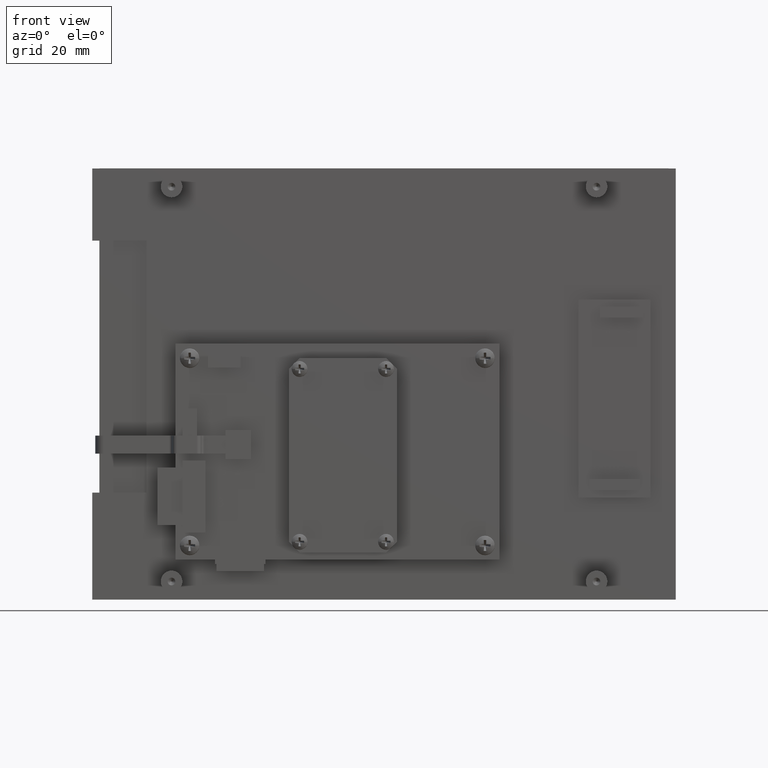
[diagram: clean part render]
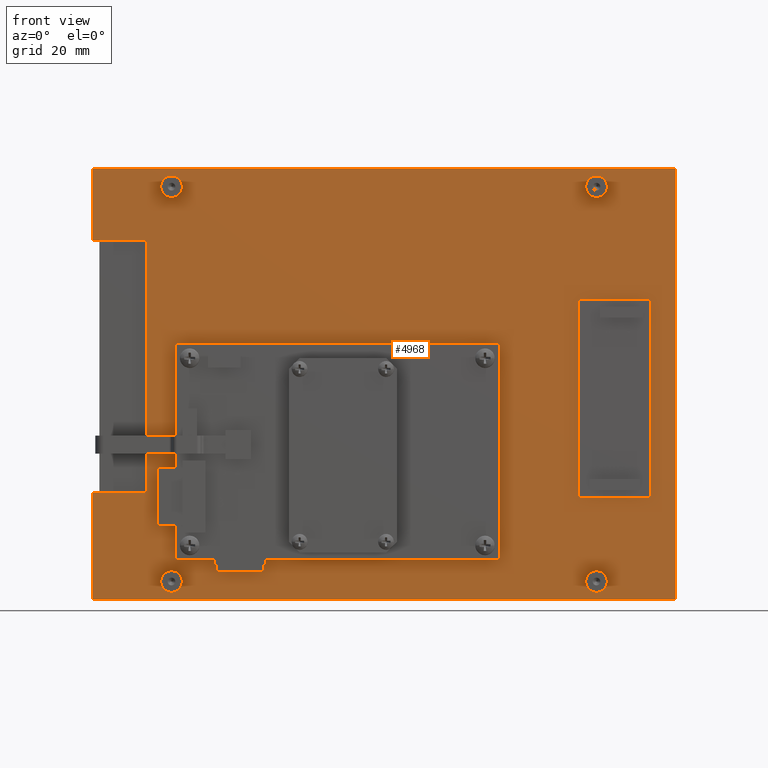
[diagram: same view with one face highlighted and labeled with its STEP entity id]
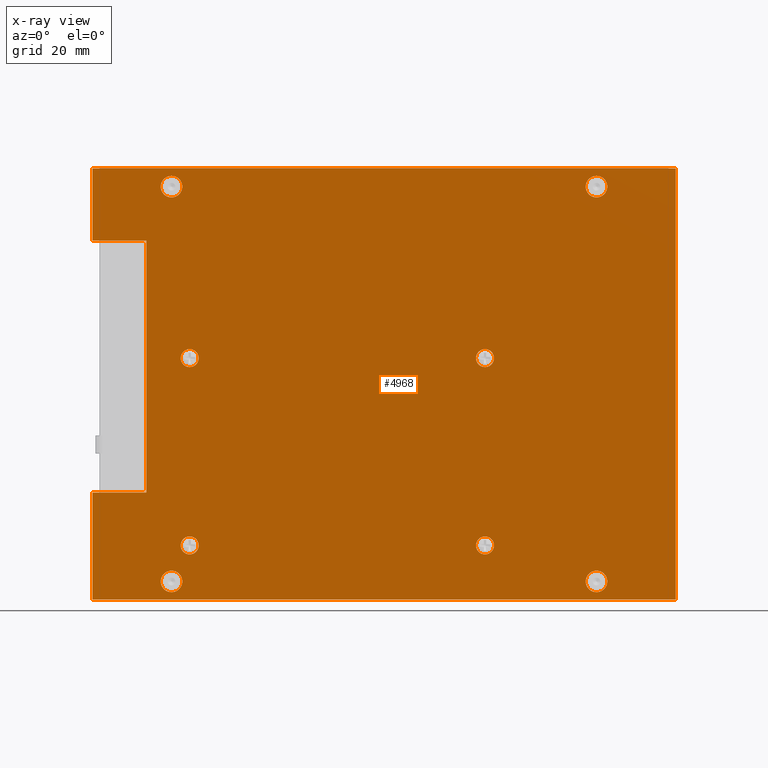
[diagram: x-ray of the same camera — body ghosted, the highlighted face saturated]
A machine part, front view. The second image highlights one B-rep face of the part: STEP entity #4968.
The next image is the same camera in x-ray: the body ghosted, the highlighted face saturated — about 0% of this face is hidden behind the body in this view.
In plain terms, the highlighted planar face has unit normal (0, 1, 0).
Its self-contained STEP definition (entity closure, byte-faithful):
#1985 = CARTESIAN_POINT ( 'NONE',  ( 4.049999999999999800, 0.0000000000000000000, -2.992500000000000600 ) ) ;
#1992 = CARTESIAN_POINT ( 'NONE',  ( 2.949999999999999700, 0.0000000000000000000, 2.890500000000000300 ) ) ;
#1996 = CARTESIAN_POINT ( 'NONE',  ( -2.698000000000000000, 0.0000000000000000000, -2.115500000000000400 ) ) ;
#2017 = CARTESIAN_POINT ( 'NONE',  ( -2.697999999999999100, 0.0000000000000000000, 0.2344999999999999000 ) ) ;
#2018 = CARTESIAN_POINT ( 'NONE',  ( -2.950000000000003300, 0.0000000000000000000, -2.890500000000000300 ) ) ;
#2021 = CARTESIAN_POINT ( 'NONE',  ( -2.950000000000003300, 0.0000000000000000000, -2.590500000000000500 ) ) ;
#2024 = CARTESIAN_POINT ( 'NONE',  ( 2.949999999999996600, 0.0000000000000000000, -2.890500000000000300 ) ) ;
#2029 = CARTESIAN_POINT ( 'NONE',  ( 1.402000000000000600, 0.0000000000000000000, 0.2344999999999999000 ) ) ;
#2030 = CARTESIAN_POINT ( 'NONE',  ( 2.949999999999996600, 0.0000000000000000000, -2.590500000000000500 ) ) ;
#2031 = CARTESIAN_POINT ( 'NONE',  ( 4.049999999999999800, 0.0000000000000000000, 2.992500000000000600 ) ) ;
#2033 = CARTESIAN_POINT ( 'NONE',  ( 2.949999999999999700, 0.0000000000000000000, 2.590500000000000500 ) ) ;
#2035 = CARTESIAN_POINT ( 'NONE',  ( -2.697999999999999100, 0.0000000000000000000, 0.4844999999999997100 ) ) ;
#2039 = CARTESIAN_POINT ( 'NONE',  ( -2.698000000000000000, 0.0000000000000000000, -2.365500000000000400 ) ) ;
#2043 = CARTESIAN_POINT ( 'NONE',  ( 1.402000000000000600, 0.0000000000000000000, 0.4844999999999997100 ) ) ;
#2050 = CARTESIAN_POINT ( 'NONE',  ( 1.401999999999999500, 0.0000000000000000000, -2.365500000000000400 ) ) ;
#2051 = CARTESIAN_POINT ( 'NONE',  ( 1.401999999999999500, 0.0000000000000000000, -2.115500000000000400 ) ) ;
#3328 = CIRCLE ( 'NONE', #4472, 0.1249999999999999000 ) ;
#3731 = CARTESIAN_POINT ( 'NONE',  ( -4.049999999999999800, 0.0000000000000000000, 1.992500000000000200 ) ) ;
#3732 = CARTESIAN_POINT ( 'NONE',  ( -3.299999999999999800, 0.0000000000000000000, -1.507499999999999600 ) ) ;
#3737 = CARTESIAN_POINT ( 'NONE',  ( -2.949999999999999700, 0.0000000000000000000, 2.590500000000000500 ) ) ;
#3741 = CARTESIAN_POINT ( 'NONE',  ( -4.049999999999999800, 0.0000000000000000000, -2.992500000000000600 ) ) ;
#3742 = CARTESIAN_POINT ( 'NONE',  ( -3.299999999999999800, 0.0000000000000000000, 1.992500000000000400 ) ) ;
#3743 = CARTESIAN_POINT ( 'NONE',  ( -4.049999999999999800, 0.0000000000000000000, 2.992500000000000600 ) ) ;
#3744 = CARTESIAN_POINT ( 'NONE',  ( -2.949999999999999700, 0.0000000000000000000, 2.890500000000000300 ) ) ;
#3745 = CARTESIAN_POINT ( 'NONE',  ( -4.049999999999999800, 0.0000000000000000000, -1.507499999999999600 ) ) ;
#4472 = AXIS2_PLACEMENT_3D ( 'NONE', #18229, #18230, #18231 ) ;
#4793 = EDGE_CURVE ( 'NONE', #7334, #7293, #7807, .T. ) ;
#4803 = EDGE_CURVE ( 'NONE', #12975, #12982, #7823, .T. ) ;
#4805 = EDGE_CURVE ( 'NONE', #7297, #7340, #7824, .T. ) ;
#4806 = EDGE_CURVE ( 'NONE', #12982, #12975, #7827, .T. ) ;
#4807 = EDGE_CURVE ( 'NONE', #12980, #12970, #7830, .T. ) ;
#4808 = EDGE_CURVE ( 'NONE', #12970, #12983, #7829, .T. ) ;
#4809 = EDGE_CURVE ( 'NONE', #12979, #12983, #7833, .T. ) ;
#4810 = EDGE_CURVE ( 'NONE', #7286, #12979, #7831, .T. ) ;
#4811 = EDGE_CURVE ( 'NONE', #7332, #7286, #7835, .T. ) ;
#4812 = EDGE_CURVE ( 'NONE', #12981, #7332, #7837, .T. ) ;
#4813 = EDGE_CURVE ( 'NONE', #12969, #12981, #7839, .T. ) ;
#4814 = EDGE_CURVE ( 'NONE', #12969, #12980, #7841, .T. ) ;
#4815 = EDGE_CURVE ( 'NONE', #7293, #7334, #7845, .T. ) ;
#4816 = EDGE_CURVE ( 'NONE', #7322, #7319, #7847, .T. ) ;
#4817 = EDGE_CURVE ( 'NONE', #7331, #7325, #7848, .T. ) ;
#4818 = EDGE_CURVE ( 'NONE', #7336, #7318, #7843, .T. ) ;
#4819 = EDGE_CURVE ( 'NONE', #7352, #7351, #7849, .T. ) ;
#4820 = EDGE_CURVE ( 'NONE', #7344, #7330, #7850, .T. ) ;
#4968 = ADVANCED_FACE ( 'NONE', ( #8050, #8824, #8058, #8057, #8056, #8825, #8826, #8827, #8828 ), #15301, .F. ) ;
#5799 = EDGE_CURVE ( 'NONE', #7351, #7352, #9389, .T. ) ;
#5803 = EDGE_CURVE ( 'NONE', #7318, #7336, #9392, .T. ) ;
#5807 = EDGE_CURVE ( 'NONE', #7340, #7297, #9398, .T. ) ;
#5811 = EDGE_CURVE ( 'NONE', #7325, #7331, #9404, .T. ) ;
#5821 = EDGE_CURVE ( 'NONE', #7319, #7322, #9420, .T. ) ;
#6597 = ORIENTED_EDGE ( 'NONE', *, *, #4805, .F. ) ;
#6598 = ORIENTED_EDGE ( 'NONE', *, *, #5807, .F. ) ;
#6599 = ORIENTED_EDGE ( 'NONE', *, *, #4806, .F. ) ;
#6600 = ORIENTED_EDGE ( 'NONE', *, *, #4803, .F. ) ;
#6601 = ORIENTED_EDGE ( 'NONE', *, *, #4807, .T. ) ;
#6602 = ORIENTED_EDGE ( 'NONE', *, *, #4808, .T. ) ;
#6603 = ORIENTED_EDGE ( 'NONE', *, *, #4809, .F. ) ;
#6604 = ORIENTED_EDGE ( 'NONE', *, *, #4810, .F. ) ;
#6605 = ORIENTED_EDGE ( 'NONE', *, *, #4811, .F. ) ;
#6606 = ORIENTED_EDGE ( 'NONE', *, *, #4812, .F. ) ;
#6607 = ORIENTED_EDGE ( 'NONE', *, *, #4813, .F. ) ;
#6608 = ORIENTED_EDGE ( 'NONE', *, *, #4814, .T. ) ;
#6609 = ORIENTED_EDGE ( 'NONE', *, *, #4815, .F. ) ;
#6610 = ORIENTED_EDGE ( 'NONE', *, *, #4793, .F. ) ;
#6611 = ORIENTED_EDGE ( 'NONE', *, *, #4816, .F. ) ;
#6612 = ORIENTED_EDGE ( 'NONE', *, *, #5821, .F. ) ;
#6613 = ORIENTED_EDGE ( 'NONE', *, *, #4817, .F. ) ;
#6614 = ORIENTED_EDGE ( 'NONE', *, *, #5811, .F. ) ;
#6615 = ORIENTED_EDGE ( 'NONE', *, *, #4818, .F. ) ;
#6616 = ORIENTED_EDGE ( 'NONE', *, *, #5803, .F. ) ;
#6617 = ORIENTED_EDGE ( 'NONE', *, *, #4819, .F. ) ;
#6618 = ORIENTED_EDGE ( 'NONE', *, *, #5799, .F. ) ;
#6619 = ORIENTED_EDGE ( 'NONE', *, *, #4820, .F. ) ;
#6620 = ORIENTED_EDGE ( 'NONE', *, *, #14750, .F. ) ;
#7286 = VERTEX_POINT ( 'NONE', #1985 ) ;
#7293 = VERTEX_POINT ( 'NONE', #1992 ) ;
#7297 = VERTEX_POINT ( 'NONE', #1996 ) ;
#7318 = VERTEX_POINT ( 'NONE', #2017 ) ;
#7319 = VERTEX_POINT ( 'NONE', #2018 ) ;
#7322 = VERTEX_POINT ( 'NONE', #2021 ) ;
#7325 = VERTEX_POINT ( 'NONE', #2024 ) ;
#7330 = VERTEX_POINT ( 'NONE', #2029 ) ;
#7331 = VERTEX_POINT ( 'NONE', #2030 ) ;
#7332 = VERTEX_POINT ( 'NONE', #2031 ) ;
#7334 = VERTEX_POINT ( 'NONE', #2033 ) ;
#7336 = VERTEX_POINT ( 'NONE', #2035 ) ;
#7340 = VERTEX_POINT ( 'NONE', #2039 ) ;
#7344 = VERTEX_POINT ( 'NONE', #2043 ) ;
#7351 = VERTEX_POINT ( 'NONE', #2050 ) ;
#7352 = VERTEX_POINT ( 'NONE', #2051 ) ;
#7807 = CIRCLE ( 'NONE', #8139, 0.1499999999999997700 ) ;
#7823 = CIRCLE ( 'NONE', #8143, 0.1499999999999997700 ) ;
#7824 = CIRCLE ( 'NONE', #8144, 0.1249999999999999000 ) ;
#7827 = CIRCLE ( 'NONE', #8145, 0.1499999999999997700 ) ;
#7829 = LINE ( 'NONE', #12245, #7834 ) ;
#7830 = LINE ( 'NONE', #12239, #7832 ) ;
#7831 = LINE ( 'NONE', #12244, #7838 ) ;
#7832 = VECTOR ( 'NONE', #12240, 39.37007874015748100 ) ;
#7833 = LINE ( 'NONE', #12251, #7836 ) ;
#7834 = VECTOR ( 'NONE', #12250, 39.37007874015748100 ) ;
#7835 = LINE ( 'NONE', #12249, #7840 ) ;
#7836 = VECTOR ( 'NONE', #12253, 39.37007874015748100 ) ;
#7837 = LINE ( 'NONE', #12252, #7842 ) ;
#7838 = VECTOR ( 'NONE', #12254, 39.37007874015748100 ) ;
#7839 = LINE ( 'NONE', #12255, #7844 ) ;
#7840 = VECTOR ( 'NONE', #12256, 39.37007874015748100 ) ;
#7841 = LINE ( 'NONE', #12257, #7846 ) ;
#7842 = VECTOR ( 'NONE', #12258, 39.37007874015748100 ) ;
#7843 = CIRCLE ( 'NONE', #8149, 0.1249999999999999000 ) ;
#7844 = VECTOR ( 'NONE', #12259, 39.37007874015748100 ) ;
#7845 = CIRCLE ( 'NONE', #8146, 0.1499999999999997700 ) ;
#7846 = VECTOR ( 'NONE', #12260, 39.37007874015748100 ) ;
#7847 = CIRCLE ( 'NONE', #8147, 0.1499999999999997700 ) ;
#7848 = CIRCLE ( 'NONE', #8148, 0.1499999999999997700 ) ;
#7849 = CIRCLE ( 'NONE', #8150, 0.1249999999999999000 ) ;
#7850 = CIRCLE ( 'NONE', #8151, 0.1249999999999999000 ) ;
#8050 = FACE_BOUND ( 'NONE', #14420, .T. ) ;
#8056 = FACE_BOUND ( 'NONE', #14422, .T. ) ;
#8057 = FACE_BOUND ( 'NONE', #14410, .T. ) ;
#8058 = FACE_OUTER_BOUND ( 'NONE', #14421, .T. ) ;
#8139 = AXIS2_PLACEMENT_3D ( 'NONE', #12212, #12213, #12214 ) ;
#8143 = AXIS2_PLACEMENT_3D ( 'NONE', #12236, #12237, #12238 ) ;
#8144 = AXIS2_PLACEMENT_3D ( 'NONE', #12241, #12242, #12243 ) ;
#8145 = AXIS2_PLACEMENT_3D ( 'NONE', #12246, #12247, #12248 ) ;
#8146 = AXIS2_PLACEMENT_3D ( 'NONE', #12262, #12263, #12264 ) ;
#8147 = AXIS2_PLACEMENT_3D ( 'NONE', #12266, #12267, #12268 ) ;
#8148 = AXIS2_PLACEMENT_3D ( 'NONE', #12269, #12270, #12271 ) ;
#8149 = AXIS2_PLACEMENT_3D ( 'NONE', #12272, #12273, #12274 ) ;
#8150 = AXIS2_PLACEMENT_3D ( 'NONE', #12275, #12276, #12277 ) ;
#8151 = AXIS2_PLACEMENT_3D ( 'NONE', #12280, #12281, #12282 ) ;
#8248 = AXIS2_PLACEMENT_3D ( 'NONE', #15299, #15296, #15302 ) ;
#8824 = FACE_BOUND ( 'NONE', #14411, .T. ) ;
#8825 = FACE_BOUND ( 'NONE', #14413, .T. ) ;
#8826 = FACE_BOUND ( 'NONE', #14424, .T. ) ;
#8827 = FACE_BOUND ( 'NONE', #14414, .T. ) ;
#8828 = FACE_BOUND ( 'NONE', #14423, .T. ) ;
#9389 = CIRCLE ( 'NONE', #11325, 0.1249999999999999000 ) ;
#9392 = CIRCLE ( 'NONE', #11327, 0.1249999999999999000 ) ;
#9398 = CIRCLE ( 'NONE', #11329, 0.1249999999999999000 ) ;
#9404 = CIRCLE ( 'NONE', #11331, 0.1499999999999997700 ) ;
#9420 = CIRCLE ( 'NONE', #11335, 0.1499999999999997700 ) ;
#11325 = AXIS2_PLACEMENT_3D ( 'NONE', #20357, #20358, #20359 ) ;
#11327 = AXIS2_PLACEMENT_3D ( 'NONE', #20367, #20368, #20369 ) ;
#11329 = AXIS2_PLACEMENT_3D ( 'NONE', #20377, #20378, #20379 ) ;
#11331 = AXIS2_PLACEMENT_3D ( 'NONE', #20386, #20387, #20388 ) ;
#11335 = AXIS2_PLACEMENT_3D ( 'NONE', #20410, #20411, #20412 ) ;
#12212 = CARTESIAN_POINT ( 'NONE',  ( 2.949999999999999700, 0.0000000000000000000, 2.740500000000000400 ) ) ;
#12213 = DIRECTION ( 'NONE',  ( -0.0000000000000000000, -1.000000000000000000, -0.0000000000000000000 ) ) ;
#12214 = DIRECTION ( 'NONE',  ( 0.0000000000000000000, 0.0000000000000000000, 1.000000000000000000 ) ) ;
#12236 = CARTESIAN_POINT ( 'NONE',  ( -2.949999999999999700, 0.0000000000000000000, 2.740500000000000400 ) ) ;
#12237 = DIRECTION ( 'NONE',  ( -0.0000000000000000000, -1.000000000000000000, -0.0000000000000000000 ) ) ;
#12238 = DIRECTION ( 'NONE',  ( 0.0000000000000000000, 0.0000000000000000000, 1.000000000000000000 ) ) ;
#12239 = CARTESIAN_POINT ( 'NONE',  ( -3.299999999999999800, 0.0000000000000000000, 1.992500000000000400 ) ) ;
#12240 = DIRECTION ( 'NONE',  ( 0.0000000000000000000, 0.0000000000000000000, -1.000000000000000000 ) ) ;
#12241 = CARTESIAN_POINT ( 'NONE',  ( -2.698000000000000000, 0.0000000000000000000, -2.240500000000000400 ) ) ;
#12242 = DIRECTION ( 'NONE',  ( -0.0000000000000000000, -1.000000000000000000, -0.0000000000000000000 ) ) ;
#12243 = DIRECTION ( 'NONE',  ( 0.0000000000000000000, 0.0000000000000000000, 1.000000000000000000 ) ) ;
#12244 = CARTESIAN_POINT ( 'NONE',  ( -4.049999999999999800, 0.0000000000000000000, -2.992500000000000600 ) ) ;
#12245 = CARTESIAN_POINT ( 'NONE',  ( -4.049999999999999800, 0.0000000000000000000, -1.507499999999999600 ) ) ;
#12246 = CARTESIAN_POINT ( 'NONE',  ( -2.949999999999999700, 0.0000000000000000000, 2.740500000000000400 ) ) ;
#12247 = DIRECTION ( 'NONE',  ( -0.0000000000000000000, -1.000000000000000000, -0.0000000000000000000 ) ) ;
#12248 = DIRECTION ( 'NONE',  ( 0.0000000000000000000, 0.0000000000000000000, 1.000000000000000000 ) ) ;
#12249 = CARTESIAN_POINT ( 'NONE',  ( 4.049999999999999800, 0.0000000000000000000, -2.992500000000000600 ) ) ;
#12250 = DIRECTION ( 'NONE',  ( -1.000000000000000000, -0.0000000000000000000, -0.0000000000000000000 ) ) ;
#12251 = CARTESIAN_POINT ( 'NONE',  ( -4.049999999999999800, 0.0000000000000000000, -2.992500000000000600 ) ) ;
#12252 = CARTESIAN_POINT ( 'NONE',  ( -4.049999999999999800, 0.0000000000000000000, 2.992500000000000600 ) ) ;
#12253 = DIRECTION ( 'NONE',  ( 9.128982434968297100E-017, 0.0000000000000000000, 1.000000000000000000 ) ) ;
#12254 = DIRECTION ( 'NONE',  ( -1.000000000000000000, -0.0000000000000000000, -0.0000000000000000000 ) ) ;
#12255 = CARTESIAN_POINT ( 'NONE',  ( -4.049999999999999800, 0.0000000000000000000, -2.992500000000000600 ) ) ;
#12256 = DIRECTION ( 'NONE',  ( -0.0000000000000000000, -0.0000000000000000000, -1.000000000000000000 ) ) ;
#12257 = CARTESIAN_POINT ( 'NONE',  ( -4.049999999999999800, 0.0000000000000000000, 1.992500000000000200 ) ) ;
#12258 = DIRECTION ( 'NONE',  ( 1.000000000000000000, 0.0000000000000000000, 0.0000000000000000000 ) ) ;
#12259 = DIRECTION ( 'NONE',  ( 9.128982434968297100E-017, 0.0000000000000000000, 1.000000000000000000 ) ) ;
#12260 = DIRECTION ( 'NONE',  ( 1.000000000000000000, 0.0000000000000000000, 3.642463991552348500E-016 ) ) ;
#12262 = CARTESIAN_POINT ( 'NONE',  ( 2.949999999999999700, 0.0000000000000000000, 2.740500000000000400 ) ) ;
#12263 = DIRECTION ( 'NONE',  ( -0.0000000000000000000, -1.000000000000000000, -0.0000000000000000000 ) ) ;
#12264 = DIRECTION ( 'NONE',  ( 0.0000000000000000000, 0.0000000000000000000, 1.000000000000000000 ) ) ;
#12266 = CARTESIAN_POINT ( 'NONE',  ( -2.950000000000003300, 0.0000000000000000000, -2.740500000000000400 ) ) ;
#12267 = DIRECTION ( 'NONE',  ( -0.0000000000000000000, -1.000000000000000000, -0.0000000000000000000 ) ) ;
#12268 = DIRECTION ( 'NONE',  ( 0.0000000000000000000, 0.0000000000000000000, 1.000000000000000000 ) ) ;
#12269 = CARTESIAN_POINT ( 'NONE',  ( 2.949999999999996600, 0.0000000000000000000, -2.740500000000000400 ) ) ;
#12270 = DIRECTION ( 'NONE',  ( -0.0000000000000000000, -1.000000000000000000, -0.0000000000000000000 ) ) ;
#12271 = DIRECTION ( 'NONE',  ( 0.0000000000000000000, 0.0000000000000000000, 1.000000000000000000 ) ) ;
#12272 = CARTESIAN_POINT ( 'NONE',  ( -2.697999999999999100, 0.0000000000000000000, 0.3594999999999998200 ) ) ;
#12273 = DIRECTION ( 'NONE',  ( -0.0000000000000000000, -1.000000000000000000, -0.0000000000000000000 ) ) ;
#12274 = DIRECTION ( 'NONE',  ( 0.0000000000000000000, 0.0000000000000000000, 1.000000000000000000 ) ) ;
#12275 = CARTESIAN_POINT ( 'NONE',  ( 1.401999999999999500, 0.0000000000000000000, -2.240500000000000400 ) ) ;
#12276 = DIRECTION ( 'NONE',  ( -0.0000000000000000000, -1.000000000000000000, -0.0000000000000000000 ) ) ;
#12277 = DIRECTION ( 'NONE',  ( 0.0000000000000000000, 0.0000000000000000000, 1.000000000000000000 ) ) ;
#12280 = CARTESIAN_POINT ( 'NONE',  ( 1.402000000000000600, 0.0000000000000000000, 0.3594999999999998200 ) ) ;
#12281 = DIRECTION ( 'NONE',  ( -0.0000000000000000000, -1.000000000000000000, -0.0000000000000000000 ) ) ;
#12282 = DIRECTION ( 'NONE',  ( 0.0000000000000000000, 0.0000000000000000000, 1.000000000000000000 ) ) ;
#12969 = VERTEX_POINT ( 'NONE', #3731 ) ;
#12970 = VERTEX_POINT ( 'NONE', #3732 ) ;
#12975 = VERTEX_POINT ( 'NONE', #3737 ) ;
#12979 = VERTEX_POINT ( 'NONE', #3741 ) ;
#12980 = VERTEX_POINT ( 'NONE', #3742 ) ;
#12981 = VERTEX_POINT ( 'NONE', #3743 ) ;
#12982 = VERTEX_POINT ( 'NONE', #3744 ) ;
#12983 = VERTEX_POINT ( 'NONE', #3745 ) ;
#14410 = EDGE_LOOP ( 'NONE', ( #6609, #6610 ) ) ;
#14411 = EDGE_LOOP ( 'NONE', ( #6599, #6600 ) ) ;
#14413 = EDGE_LOOP ( 'NONE', ( #6613, #6614 ) ) ;
#14414 = EDGE_LOOP ( 'NONE', ( #6617, #6618 ) ) ;
#14420 = EDGE_LOOP ( 'NONE', ( #6597, #6598 ) ) ;
#14421 = EDGE_LOOP ( 'NONE', ( #6601, #6602, #6603, #6604, #6605, #6606, #6607, #6608 ) ) ;
#14422 = EDGE_LOOP ( 'NONE', ( #6611, #6612 ) ) ;
#14423 = EDGE_LOOP ( 'NONE', ( #6619, #6620 ) ) ;
#14424 = EDGE_LOOP ( 'NONE', ( #6615, #6616 ) ) ;
#14750 = EDGE_CURVE ( 'NONE', #7330, #7344, #3328, .T. ) ;
#15296 = DIRECTION ( 'NONE',  ( 0.0000000000000000000, 1.000000000000000000, 0.0000000000000000000 ) ) ;
#15299 = CARTESIAN_POINT ( 'NONE',  ( 0.0000000000000000000, 0.0000000000000000000, 0.0000000000000000000 ) ) ;
#15301 = PLANE ( 'NONE',  #8248 ) ;
#15302 = DIRECTION ( 'NONE',  ( 0.0000000000000000000, -0.0000000000000000000, 1.000000000000000000 ) ) ;
#18229 = CARTESIAN_POINT ( 'NONE',  ( 1.402000000000000600, 0.0000000000000000000, 0.3594999999999998200 ) ) ;
#18230 = DIRECTION ( 'NONE',  ( -0.0000000000000000000, -1.000000000000000000, -0.0000000000000000000 ) ) ;
#18231 = DIRECTION ( 'NONE',  ( 0.0000000000000000000, 0.0000000000000000000, 1.000000000000000000 ) ) ;
#20357 = CARTESIAN_POINT ( 'NONE',  ( 1.401999999999999500, 0.0000000000000000000, -2.240500000000000400 ) ) ;
#20358 = DIRECTION ( 'NONE',  ( -0.0000000000000000000, -1.000000000000000000, -0.0000000000000000000 ) ) ;
#20359 = DIRECTION ( 'NONE',  ( 0.0000000000000000000, 0.0000000000000000000, 1.000000000000000000 ) ) ;
#20367 = CARTESIAN_POINT ( 'NONE',  ( -2.697999999999999100, 0.0000000000000000000, 0.3594999999999998200 ) ) ;
#20368 = DIRECTION ( 'NONE',  ( -0.0000000000000000000, -1.000000000000000000, -0.0000000000000000000 ) ) ;
#20369 = DIRECTION ( 'NONE',  ( 0.0000000000000000000, 0.0000000000000000000, 1.000000000000000000 ) ) ;
#20377 = CARTESIAN_POINT ( 'NONE',  ( -2.698000000000000000, 0.0000000000000000000, -2.240500000000000400 ) ) ;
#20378 = DIRECTION ( 'NONE',  ( -0.0000000000000000000, -1.000000000000000000, -0.0000000000000000000 ) ) ;
#20379 = DIRECTION ( 'NONE',  ( 0.0000000000000000000, 0.0000000000000000000, 1.000000000000000000 ) ) ;
#20386 = CARTESIAN_POINT ( 'NONE',  ( 2.949999999999996600, 0.0000000000000000000, -2.740500000000000400 ) ) ;
#20387 = DIRECTION ( 'NONE',  ( -0.0000000000000000000, -1.000000000000000000, -0.0000000000000000000 ) ) ;
#20388 = DIRECTION ( 'NONE',  ( 0.0000000000000000000, 0.0000000000000000000, 1.000000000000000000 ) ) ;
#20410 = CARTESIAN_POINT ( 'NONE',  ( -2.950000000000003300, 0.0000000000000000000, -2.740500000000000400 ) ) ;
#20411 = DIRECTION ( 'NONE',  ( -0.0000000000000000000, -1.000000000000000000, -0.0000000000000000000 ) ) ;
#20412 = DIRECTION ( 'NONE',  ( 0.0000000000000000000, 0.0000000000000000000, 1.000000000000000000 ) ) ;